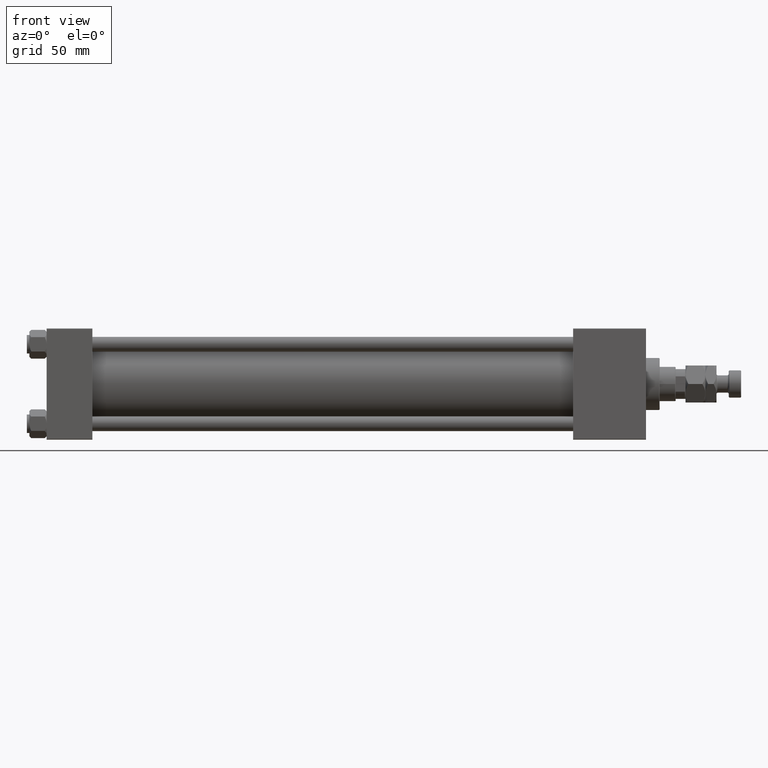
[diagram: clean part render]
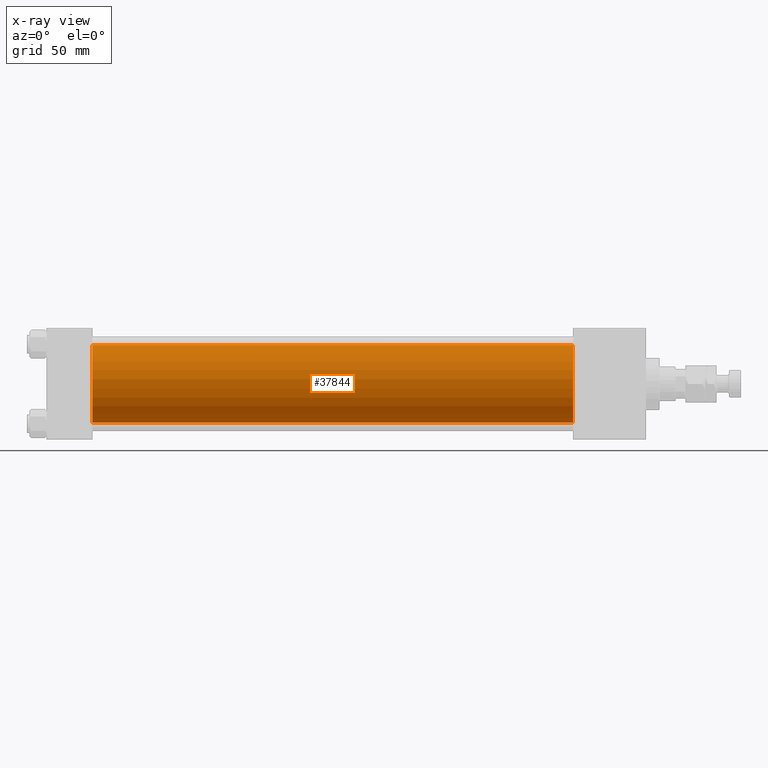
[diagram: x-ray — body ghosted, one internal face saturated and labeled with its STEP entity id]
A machine part, front view, then the same camera in x-ray: the body is ghosted and one INTERNAL B-rep face — a face not visible from any outside direction — is saturated and labeled: STEP entity #37844.
In plain terms, the highlighted cylindrical surface (partial cylindrical patch) has radius 31.5 mm, axis along (-1, -0, -0).
Its self-contained STEP definition (entity closure, byte-faithful):
#61 = CARTESIAN_POINT ( 'NONE',  ( 426.0000000000000000, 1.255552203348951850E-15, -31.50000000000000000 ) ) ;
#919 = DIRECTION ( 'NONE',  ( 1.000000000000000000, 0.000000000000000000, 0.000000000000000000 ) ) ;
#979 = EDGE_CURVE ( 'NONE', #17604, #34265, #15088, .T. ) ;
#1230 = ORIENTED_EDGE ( 'NONE', *, *, #30603, .F. ) ;
#1643 = CYLINDRICAL_SURFACE ( 'NONE', #14302, 31.50000000000000000 ) ;
#1902 = CARTESIAN_POINT ( 'NONE',  ( 426.0000000000000000, -2.602085213965210642E-15, 0.000000000000000000 ) ) ;
#4927 = DIRECTION ( 'NONE',  ( 1.000000000000000000, 0.000000000000000000, 0.000000000000000000 ) ) ;
#5704 = CARTESIAN_POINT ( 'NONE',  ( 426.0000000000000000, -2.602085213965210642E-15, 0.000000000000000000 ) ) ;
#8812 = CIRCLE ( 'NONE', #38201, 31.50000000000000000 ) ;
#9808 = DIRECTION ( 'NONE',  ( -1.000000000000000000, -0.000000000000000000, -0.000000000000000000 ) ) ;
#11734 = CARTESIAN_POINT ( 'NONE',  ( 37.00000000000000000, -2.602085213965210642E-15, 31.50000000000000000 ) ) ;
#11848 = EDGE_LOOP ( 'NONE', ( #50639, #37080, #29520, #1230 ) ) ;
#14302 = AXIS2_PLACEMENT_3D ( 'NONE', #1902, #9808, #21913 ) ;
#15088 = CIRCLE ( 'NONE', #31874, 31.50000000000000000 ) ;
#16349 = LINE ( 'NONE', #48456, #46961 ) ;
#17604 = VERTEX_POINT ( 'NONE', #49080 ) ;
#17638 = EDGE_CURVE ( 'NONE', #29098, #39469, #8812, .T. ) ;
#20323 = LINE ( 'NONE', #61, #30400 ) ;
#21913 = DIRECTION ( 'NONE',  ( 0.000000000000000000, 0.000000000000000000, 1.000000000000000000 ) ) ;
#28414 = CARTESIAN_POINT ( 'NONE',  ( 37.00000000000000000, 1.255552203348951850E-15, -31.50000000000000000 ) ) ;
#28720 = DIRECTION ( 'NONE',  ( -1.000000000000000000, -0.000000000000000000, -0.000000000000000000 ) ) ;
#29058 = DIRECTION ( 'NONE',  ( 0.000000000000000000, 0.000000000000000000, -1.000000000000000000 ) ) ;
#29098 = VERTEX_POINT ( 'NONE', #11734 ) ;
#29520 = ORIENTED_EDGE ( 'NONE', *, *, #17638, .F. ) ;
#29785 = FACE_OUTER_BOUND ( 'NONE', #11848, .T. ) ;
#30400 = VECTOR ( 'NONE', #28720, 1000.000000000000000 ) ;
#30603 = EDGE_CURVE ( 'NONE', #17604, #29098, #16349, .T. ) ;
#31874 = AXIS2_PLACEMENT_3D ( 'NONE', #5704, #4927, #33063 ) ;
#33063 = DIRECTION ( 'NONE',  ( 0.000000000000000000, 0.000000000000000000, -1.000000000000000000 ) ) ;
#34265 = VERTEX_POINT ( 'NONE', #48728 ) ;
#37080 = ORIENTED_EDGE ( 'NONE', *, *, #45786, .T. ) ;
#37844 = ADVANCED_FACE ( 'NONE', ( #29785 ), #1643, .F. ) ;
#38201 = AXIS2_PLACEMENT_3D ( 'NONE', #45911, #919, #29058 ) ;
#39469 = VERTEX_POINT ( 'NONE', #28414 ) ;
#40540 = DIRECTION ( 'NONE',  ( -1.000000000000000000, -0.000000000000000000, -0.000000000000000000 ) ) ;
#45786 = EDGE_CURVE ( 'NONE', #34265, #39469, #20323, .T. ) ;
#45911 = CARTESIAN_POINT ( 'NONE',  ( 37.00000000000000000, -2.602085213965210642E-15, 0.000000000000000000 ) ) ;
#46961 = VECTOR ( 'NONE', #40540, 1000.000000000000000 ) ;
#48456 = CARTESIAN_POINT ( 'NONE',  ( 426.0000000000000000, -2.602085213965210642E-15, 31.50000000000000000 ) ) ;
#48728 = CARTESIAN_POINT ( 'NONE',  ( 426.0000000000000000, 1.255552203348951850E-15, -31.50000000000000000 ) ) ;
#49080 = CARTESIAN_POINT ( 'NONE',  ( 426.0000000000000000, -2.602085213965210642E-15, 31.50000000000000000 ) ) ;
#50639 = ORIENTED_EDGE ( 'NONE', *, *, #979, .T. ) ;